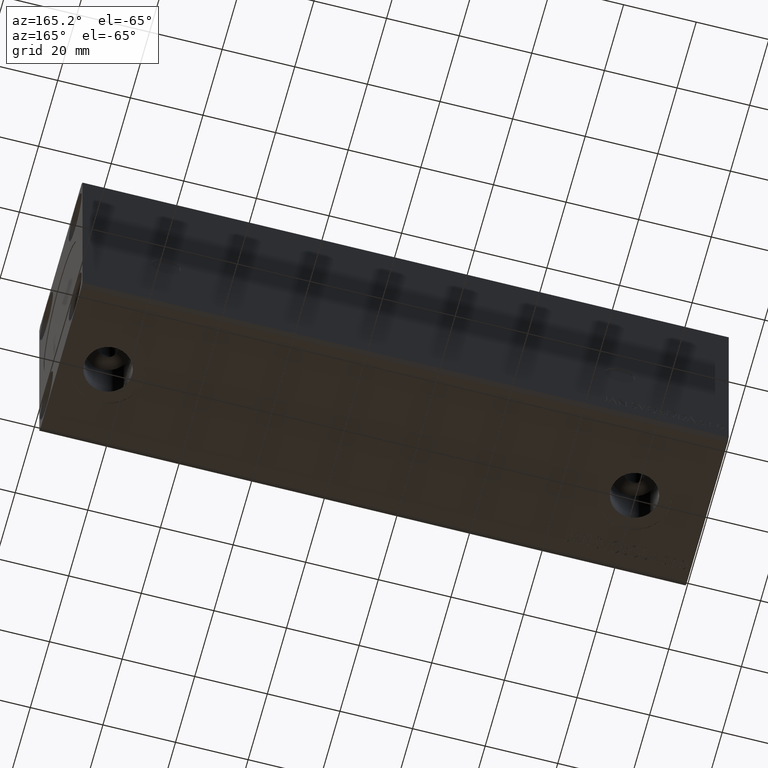
[diagram: clean part render]
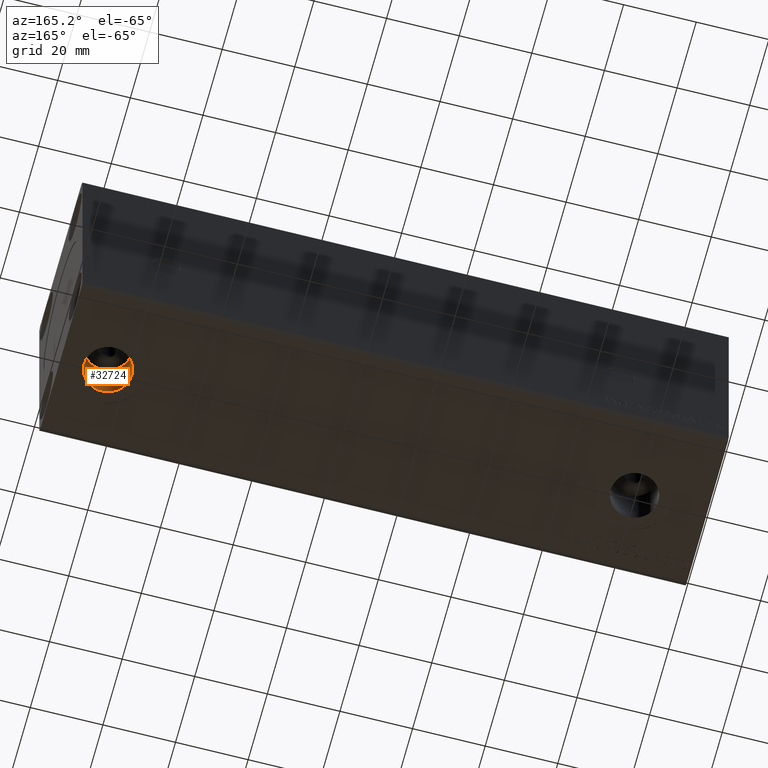
[diagram: same view with one face highlighted and labeled with its STEP entity id]
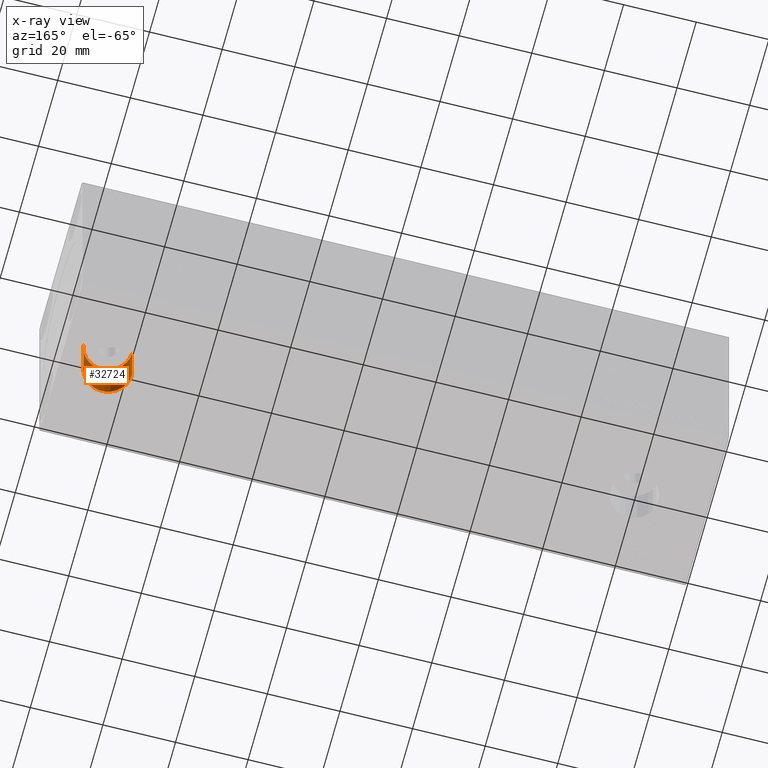
[diagram: x-ray of the same camera — body ghosted, the highlighted face saturated]
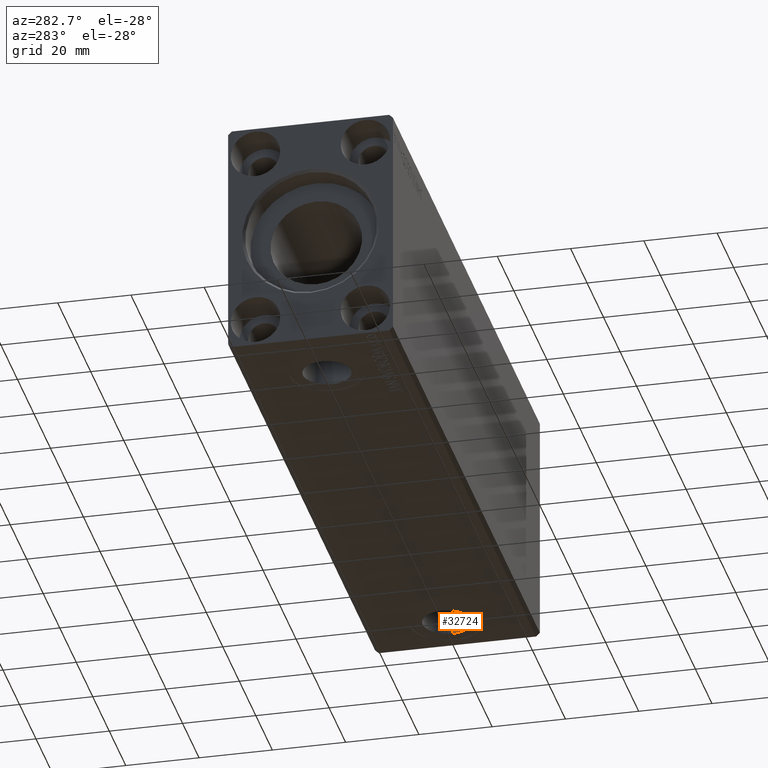
[diagram: same view with one face highlighted and labeled with its STEP entity id]
A machine part, auxiliary view. The second image highlights one B-rep face of the part: STEP entity #32724.
The next image is the same camera in x-ray: the body ghosted, the highlighted face saturated — about 0% of this face is hidden behind the body in this view.
A second angle (auxiliary view) of the same face is appended — the face is thin or edge-on in the first view.
In plain terms, the highlighted cylindrical surface (edge-blend (fillet) strip) has radius 6.58 mm, axis along (-0, -0, -1).
Its self-contained STEP definition (entity closure, byte-faithful):
#2123 = DIRECTION ( 'NONE',  ( -1.000000000000000000, 0.000000000000000000, 0.000000000000000000 ) ) ;
#2146 = ORIENTED_EDGE ( 'NONE', *, *, #33645, .T. ) ;
#2809 = DIRECTION ( 'NONE',  ( 0.000000000000000000, 0.000000000000000000, -1.000000000000000000 ) ) ;
#3204 = VERTEX_POINT ( 'NONE', #21895 ) ;
#3448 = ORIENTED_EDGE ( 'NONE', *, *, #17877, .F. ) ;
#3872 = CARTESIAN_POINT ( 'NONE',  ( 158.4199999999999875, -1.557216887737319827E-14, -32.39999999999999858 ) ) ;
#10197 = VERTEX_POINT ( 'NONE', #18558 ) ;
#12591 = AXIS2_PLACEMENT_3D ( 'NONE', #26274, #2809, #36610 ) ;
#13962 = LINE ( 'NONE', #24064, #21462 ) ;
#15209 = CYLINDRICAL_SURFACE ( 'NONE', #19673, 6.580000000000002736 ) ;
#15235 = CARTESIAN_POINT ( 'NONE',  ( 158.4199999999999875, -1.557216887737319827E-14, -18.79999999999999716 ) ) ;
#16269 = CIRCLE ( 'NONE', #30000, 6.580000000000002736 ) ;
#17486 = CARTESIAN_POINT ( 'NONE',  ( 158.4199999999999875, -1.557216887737319827E-14, -18.79999999999999716 ) ) ;
#17877 = EDGE_CURVE ( 'NONE', #3204, #36598, #22200, .T. ) ;
#18019 = VECTOR ( 'NONE', #24924, 1000.000000000000000 ) ;
#18441 = DIRECTION ( 'NONE',  ( -0.000000000000000000, -0.000000000000000000, -1.000000000000000000 ) ) ;
#18558 = CARTESIAN_POINT ( 'NONE',  ( 171.5799999999999841, -1.476635128353423608E-14, -32.39999999999999858 ) ) ;
#19673 = AXIS2_PLACEMENT_3D ( 'NONE', #41899, #18441, #25529 ) ;
#21462 = VECTOR ( 'NONE', #27297, 1000.000000000000000 ) ;
#21895 = CARTESIAN_POINT ( 'NONE',  ( 171.5799999999999841, -1.476635128353423608E-14, -18.79999999999999716 ) ) ;
#22200 = CIRCLE ( 'NONE', #12591, 6.580000000000002736 ) ;
#24064 = CARTESIAN_POINT ( 'NONE',  ( 171.5799999999999841, -1.476635128353423923E-14, -18.79999999999999716 ) ) ;
#24924 = DIRECTION ( 'NONE',  ( -0.000000000000000000, -0.000000000000000000, -1.000000000000000000 ) ) ;
#25529 = DIRECTION ( 'NONE',  ( -1.000000000000000000, 0.000000000000000000, 0.000000000000000000 ) ) ;
#26274 = CARTESIAN_POINT ( 'NONE',  ( 164.9999999999999716, -1.557216887737319827E-14, -18.79999999999999716 ) ) ;
#27297 = DIRECTION ( 'NONE',  ( -0.000000000000000000, -0.000000000000000000, -1.000000000000000000 ) ) ;
#27766 = CARTESIAN_POINT ( 'NONE',  ( 164.9999999999999716, -1.557216887737319827E-14, -32.39999999999999858 ) ) ;
#30000 = AXIS2_PLACEMENT_3D ( 'NONE', #27766, #40681, #2123 ) ;
#30307 = LINE ( 'NONE', #15235, #18019 ) ;
#32724 = ADVANCED_FACE ( 'NONE', ( #38037 ), #15209, .F. ) ;
#33645 = EDGE_CURVE ( 'NONE', #10197, #34250, #16269, .T. ) ;
#34250 = VERTEX_POINT ( 'NONE', #3872 ) ;
#34678 = EDGE_LOOP ( 'NONE', ( #3448, #35408, #2146, #41037 ) ) ;
#35408 = ORIENTED_EDGE ( 'NONE', *, *, #42118, .T. ) ;
#36598 = VERTEX_POINT ( 'NONE', #17486 ) ;
#36610 = DIRECTION ( 'NONE',  ( -1.000000000000000000, 0.000000000000000000, 0.000000000000000000 ) ) ;
#38037 = FACE_OUTER_BOUND ( 'NONE', #34678, .T. ) ;
#40681 = DIRECTION ( 'NONE',  ( 0.000000000000000000, 0.000000000000000000, -1.000000000000000000 ) ) ;
#41037 = ORIENTED_EDGE ( 'NONE', *, *, #42151, .F. ) ;
#41899 = CARTESIAN_POINT ( 'NONE',  ( 164.9999999999999716, -1.557216887737319827E-14, -18.79999999999999716 ) ) ;
#42118 = EDGE_CURVE ( 'NONE', #3204, #10197, #13962, .T. ) ;
#42151 = EDGE_CURVE ( 'NONE', #36598, #34250, #30307, .T. ) ;